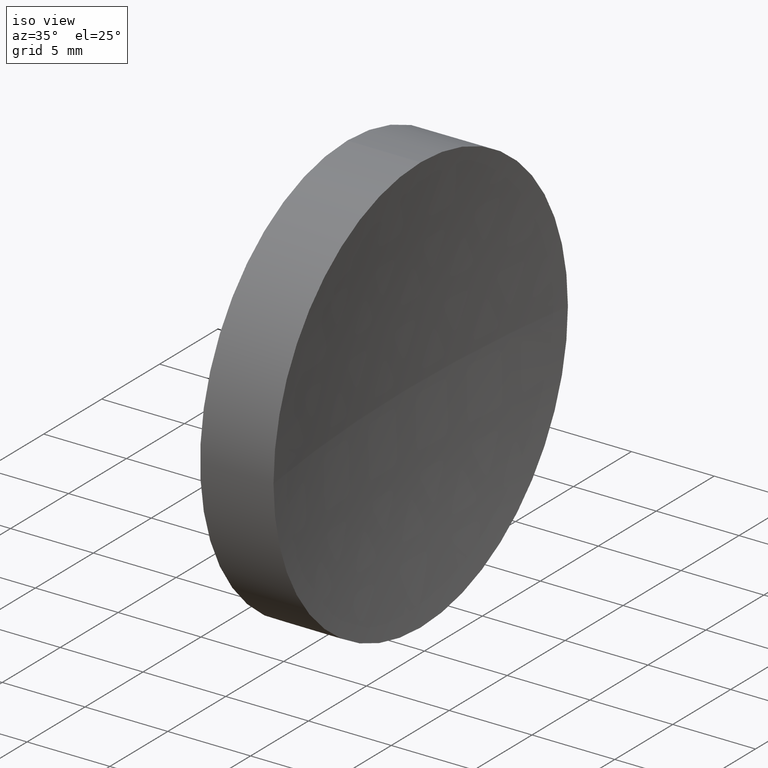
[diagram: clean part render]
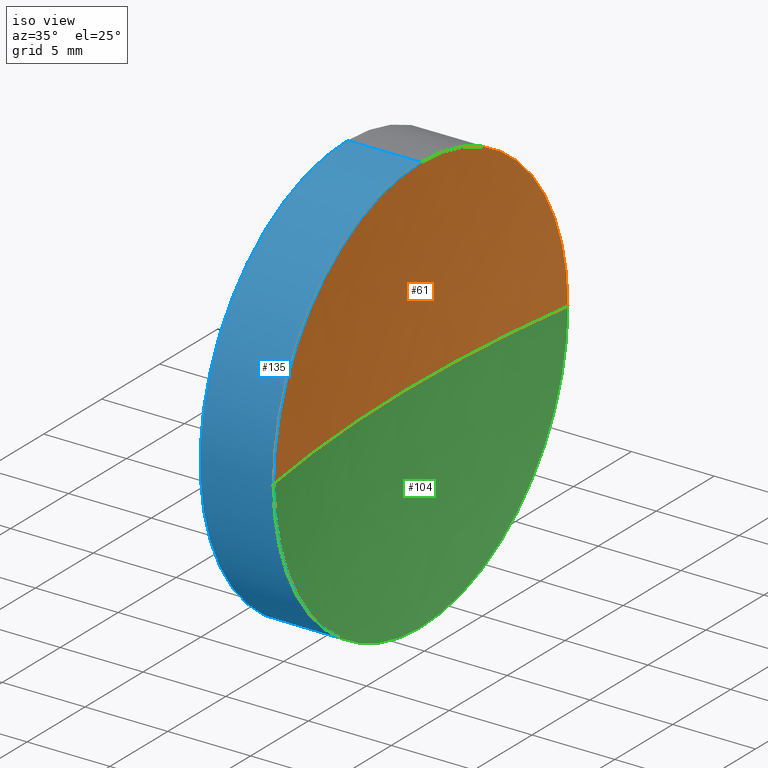
[diagram: same view with three faces highlighted in distinct colors, each labeled with its STEP entity id]
A machine part, iso view with three faces highlighted in distinct colors.
Their STEP definitions:

[orange] entity #61 — the highlighted spherical surface has radius 86.8 mm.
#3 = AXIS2_PLACEMENT_3D ( 'NONE', #100, #25, #39 ) ;
#11 = DIRECTION ( 'NONE',  ( -1.000000000000000000, 0.0000000000000000000, 0.0000000000000000000 ) ) ;
#16 = VERTEX_POINT ( 'NONE', #17 ) ;
#17 = CARTESIAN_POINT ( 'NONE',  ( 123.9409503829447100, 58.49398908659372900, 0.0000000000000000000 ) ) ;
#18 = CIRCLE ( 'NONE', #134, 12.70000000000001700 ) ;
#23 = CIRCLE ( 'NONE', #137, 12.70000000000001700 ) ;
#25 = DIRECTION ( 'NONE',  ( 0.0000000000000000000, -1.224646799147353200E-016, 1.000000000000000000 ) ) ;
#30 = EDGE_CURVE ( 'NONE', #16, #144, #18, .T. ) ;
#38 = ORIENTED_EDGE ( 'NONE', *, *, #117, .F. ) ;
#39 = DIRECTION ( 'NONE',  ( 0.0000000000000000000, -1.000000000000000000, -1.224646799147353500E-016 ) ) ;
#49 = ORIENTED_EDGE ( 'NONE', *, *, #108, .F. ) ;
#50 = CARTESIAN_POINT ( 'NONE',  ( 123.0068341785477300, 71.19398908659373100, 0.0000000000000000000 ) ) ;
#52 = EDGE_LOOP ( 'NONE', ( #49, #38, #151, #173 ) ) ;
#61 = ADVANCED_FACE ( 'NONE', ( #185 ), #163, .F. ) ;
#68 = CARTESIAN_POINT ( 'NONE',  ( 123.9409503829447100, 83.89398908659370600, 1.555301434917135500E-015 ) ) ;
#78 = AXIS2_PLACEMENT_3D ( 'NONE', #92, #159, #160 ) ;
#84 = CARTESIAN_POINT ( 'NONE',  ( 123.9409503829447100, 71.19398908659370300, 0.0000000000000000000 ) ) ;
#92 = CARTESIAN_POINT ( 'NONE',  ( 209.8068341785477200, 71.19398908659373100, 0.0000000000000000000 ) ) ;
#93 = DIRECTION ( 'NONE',  ( -1.000000000000000000, -0.0000000000000000000, -0.0000000000000000000 ) ) ;
#96 = VERTEX_POINT ( 'NONE', #68 ) ;
#100 = CARTESIAN_POINT ( 'NONE',  ( 209.8068341785477200, 71.19398908659373100, 0.0000000000000000000 ) ) ;
#108 = EDGE_CURVE ( 'NONE', #96, #133, #183, .T. ) ;
#112 = DIRECTION ( 'NONE',  ( 0.0000000000000000000, 0.0000000000000000000, 1.000000000000000000 ) ) ;
#114 = CIRCLE ( 'NONE', #150, 86.79999999999999700 ) ;
#117 = EDGE_CURVE ( 'NONE', #144, #96, #23, .T. ) ;
#118 = DIRECTION ( 'NONE',  ( 0.0000000000000000000, 0.0000000000000000000, 1.000000000000000000 ) ) ;
#125 = DIRECTION ( 'NONE',  ( 0.0000000000000000000, 0.0000000000000000000, -1.000000000000000000 ) ) ;
#133 = VERTEX_POINT ( 'NONE', #50 ) ;
#134 = AXIS2_PLACEMENT_3D ( 'NONE', #147, #93, #118 ) ;
#137 = AXIS2_PLACEMENT_3D ( 'NONE', #84, #164, #112 ) ;
#144 = VERTEX_POINT ( 'NONE', #169 ) ;
#147 = CARTESIAN_POINT ( 'NONE',  ( 123.9409503829447100, 71.19398908659370300, 0.0000000000000000000 ) ) ;
#150 = AXIS2_PLACEMENT_3D ( 'NONE', #167, #125, #11 ) ;
#151 = ORIENTED_EDGE ( 'NONE', *, *, #30, .F. ) ;
#159 = DIRECTION ( 'NONE',  ( 0.0000000000000000000, 0.0000000000000000000, 1.000000000000000000 ) ) ;
#160 = DIRECTION ( 'NONE',  ( 0.0000000000000000000, -1.000000000000000000, 0.0000000000000000000 ) ) ;
#163 = SPHERICAL_SURFACE ( 'NONE', #78, 86.79999999999999700 ) ;
#164 = DIRECTION ( 'NONE',  ( -1.000000000000000000, -0.0000000000000000000, -0.0000000000000000000 ) ) ;
#167 = CARTESIAN_POINT ( 'NONE',  ( 209.8068341785477200, 71.19398908659373100, 0.0000000000000000000 ) ) ;
#168 = EDGE_CURVE ( 'NONE', #16, #133, #114, .T. ) ;
#169 = CARTESIAN_POINT ( 'NONE',  ( 123.9409503829447100, 71.19398908659370300, 12.70000000000001500 ) ) ;
#173 = ORIENTED_EDGE ( 'NONE', *, *, #168, .T. ) ;
#183 = CIRCLE ( 'NONE', #3, 86.79999999999999700 ) ;
#185 = FACE_OUTER_BOUND ( 'NONE', #52, .T. ) ;

[blue] entity #135 — the highlighted cylindrical surface (partial cylindrical patch) has radius 12.7 mm, axis along (-1, -0, -0).
#5 = FACE_OUTER_BOUND ( 'NONE', #158, .T. ) ;
#6 = CARTESIAN_POINT ( 'NONE',  ( 111.9552297575605700, 71.19398908659370300, -12.70000000000001000 ) ) ;
#12 = CARTESIAN_POINT ( 'NONE',  ( 111.9552297575605700, 71.19398908659370300, 12.70000000000001000 ) ) ;
#14 = ORIENTED_EDGE ( 'NONE', *, *, #103, .T. ) ;
#15 = DIRECTION ( 'NONE',  ( -1.000000000000000000, -0.0000000000000000000, -0.0000000000000000000 ) ) ;
#16 = VERTEX_POINT ( 'NONE', #17 ) ;
#17 = CARTESIAN_POINT ( 'NONE',  ( 123.9409503829447100, 58.49398908659372900, 0.0000000000000000000 ) ) ;
#18 = CIRCLE ( 'NONE', #134, 12.70000000000001700 ) ;
#19 = CYLINDRICAL_SURFACE ( 'NONE', #116, 12.70000000000001000 ) ;
#22 = AXIS2_PLACEMENT_3D ( 'NONE', #153, #54, #83 ) ;
#27 = CARTESIAN_POINT ( 'NONE',  ( 111.9552297575605700, 71.19398908659370300, 0.0000000000000000000 ) ) ;
#30 = EDGE_CURVE ( 'NONE', #16, #144, #18, .T. ) ;
#31 = VECTOR ( 'NONE', #73, 1000.000000000000000 ) ;
#34 = DIRECTION ( 'NONE',  ( -1.000000000000000000, -0.0000000000000000000, -0.0000000000000000000 ) ) ;
#44 = CIRCLE ( 'NONE', #140, 12.70000000000001700 ) ;
#54 = DIRECTION ( 'NONE',  ( -1.000000000000000000, -0.0000000000000000000, -0.0000000000000000000 ) ) ;
#58 = EDGE_CURVE ( 'NONE', #111, #16, #44, .T. ) ;
#70 = DIRECTION ( 'NONE',  ( 0.0000000000000000000, 0.0000000000000000000, 1.000000000000000000 ) ) ;
#73 = DIRECTION ( 'NONE',  ( -1.000000000000000000, -0.0000000000000000000, -0.0000000000000000000 ) ) ;
#76 = LINE ( 'NONE', #12, #31 ) ;
#77 = CARTESIAN_POINT ( 'NONE',  ( 123.9409503829447100, 71.19398908659370300, 0.0000000000000000000 ) ) ;
#82 = EDGE_CURVE ( 'NONE', #111, #124, #94, .T. ) ;
#83 = DIRECTION ( 'NONE',  ( 0.0000000000000000000, 0.0000000000000000000, 1.000000000000000000 ) ) ;
#88 = VERTEX_POINT ( 'NONE', #141 ) ;
#93 = DIRECTION ( 'NONE',  ( -1.000000000000000000, -0.0000000000000000000, -0.0000000000000000000 ) ) ;
#94 = LINE ( 'NONE', #6, #115 ) ;
#102 = ORIENTED_EDGE ( 'NONE', *, *, #82, .F. ) ;
#103 = EDGE_CURVE ( 'NONE', #144, #88, #76, .T. ) ;
#105 = DIRECTION ( 'NONE',  ( 0.0000000000000000000, 0.0000000000000000000, 1.000000000000000000 ) ) ;
#111 = VERTEX_POINT ( 'NONE', #156 ) ;
#115 = VECTOR ( 'NONE', #34, 1000.000000000000000 ) ;
#116 = AXIS2_PLACEMENT_3D ( 'NONE', #27, #15, #70 ) ;
#118 = DIRECTION ( 'NONE',  ( 0.0000000000000000000, 0.0000000000000000000, 1.000000000000000000 ) ) ;
#124 = VERTEX_POINT ( 'NONE', #127 ) ;
#127 = CARTESIAN_POINT ( 'NONE',  ( 119.5068341785477100, 71.19398908659370300, -12.70000000000000300 ) ) ;
#134 = AXIS2_PLACEMENT_3D ( 'NONE', #147, #93, #118 ) ;
#135 = ADVANCED_FACE ( 'NONE', ( #5 ), #19, .T. ) ;
#139 = CIRCLE ( 'NONE', #22, 12.70000000000000300 ) ;
#140 = AXIS2_PLACEMENT_3D ( 'NONE', #77, #175, #105 ) ;
#141 = CARTESIAN_POINT ( 'NONE',  ( 119.5068341785477100, 71.19398908659370300, 12.70000000000000300 ) ) ;
#144 = VERTEX_POINT ( 'NONE', #169 ) ;
#146 = ORIENTED_EDGE ( 'NONE', *, *, #161, .F. ) ;
#147 = CARTESIAN_POINT ( 'NONE',  ( 123.9409503829447100, 71.19398908659370300, 0.0000000000000000000 ) ) ;
#149 = ORIENTED_EDGE ( 'NONE', *, *, #30, .T. ) ;
#153 = CARTESIAN_POINT ( 'NONE',  ( 119.5068341785477100, 71.19398908659370300, 0.0000000000000000000 ) ) ;
#156 = CARTESIAN_POINT ( 'NONE',  ( 123.9409503829447100, 71.19398908659370300, -12.70000000000001500 ) ) ;
#158 = EDGE_LOOP ( 'NONE', ( #102, #177, #149, #14, #146 ) ) ;
#161 = EDGE_CURVE ( 'NONE', #124, #88, #139, .T. ) ;
#169 = CARTESIAN_POINT ( 'NONE',  ( 123.9409503829447100, 71.19398908659370300, 12.70000000000001500 ) ) ;
#175 = DIRECTION ( 'NONE',  ( -1.000000000000000000, -0.0000000000000000000, -0.0000000000000000000 ) ) ;
#177 = ORIENTED_EDGE ( 'NONE', *, *, #58, .T. ) ;

[green] entity #104 — the highlighted spherical surface has radius 86.8 mm.
#3 = AXIS2_PLACEMENT_3D ( 'NONE', #100, #25, #39 ) ;
#4 = ORIENTED_EDGE ( 'NONE', *, *, #168, .F. ) ;
#11 = DIRECTION ( 'NONE',  ( -1.000000000000000000, 0.0000000000000000000, 0.0000000000000000000 ) ) ;
#16 = VERTEX_POINT ( 'NONE', #17 ) ;
#17 = CARTESIAN_POINT ( 'NONE',  ( 123.9409503829447100, 58.49398908659372900, 0.0000000000000000000 ) ) ;
#25 = DIRECTION ( 'NONE',  ( 0.0000000000000000000, -1.224646799147353200E-016, 1.000000000000000000 ) ) ;
#32 = ORIENTED_EDGE ( 'NONE', *, *, #45, .F. ) ;
#36 = DIRECTION ( 'NONE',  ( 0.0000000000000000000, -1.000000000000000000, 0.0000000000000000000 ) ) ;
#39 = DIRECTION ( 'NONE',  ( 0.0000000000000000000, -1.000000000000000000, -1.224646799147353500E-016 ) ) ;
#44 = CIRCLE ( 'NONE', #140, 12.70000000000001700 ) ;
#45 = EDGE_CURVE ( 'NONE', #96, #111, #136, .T. ) ;
#48 = CARTESIAN_POINT ( 'NONE',  ( 123.9409503829447100, 71.19398908659370300, 0.0000000000000000000 ) ) ;
#50 = CARTESIAN_POINT ( 'NONE',  ( 123.0068341785477300, 71.19398908659373100, 0.0000000000000000000 ) ) ;
#53 = CARTESIAN_POINT ( 'NONE',  ( 209.8068341785477200, 71.19398908659373100, 0.0000000000000000000 ) ) ;
#57 = ORIENTED_EDGE ( 'NONE', *, *, #58, .F. ) ;
#58 = EDGE_CURVE ( 'NONE', #111, #16, #44, .T. ) ;
#63 = DIRECTION ( 'NONE',  ( -1.000000000000000000, -0.0000000000000000000, -0.0000000000000000000 ) ) ;
#64 = SPHERICAL_SURFACE ( 'NONE', #179, 86.79999999999999700 ) ;
#68 = CARTESIAN_POINT ( 'NONE',  ( 123.9409503829447100, 83.89398908659370600, 1.555301434917135500E-015 ) ) ;
#71 = DIRECTION ( 'NONE',  ( 0.0000000000000000000, 0.0000000000000000000, 1.000000000000000000 ) ) ;
#77 = CARTESIAN_POINT ( 'NONE',  ( 123.9409503829447100, 71.19398908659370300, 0.0000000000000000000 ) ) ;
#95 = ORIENTED_EDGE ( 'NONE', *, *, #108, .T. ) ;
#96 = VERTEX_POINT ( 'NONE', #68 ) ;
#100 = CARTESIAN_POINT ( 'NONE',  ( 209.8068341785477200, 71.19398908659373100, 0.0000000000000000000 ) ) ;
#104 = ADVANCED_FACE ( 'NONE', ( #162 ), #64, .F. ) ;
#105 = DIRECTION ( 'NONE',  ( 0.0000000000000000000, 0.0000000000000000000, 1.000000000000000000 ) ) ;
#108 = EDGE_CURVE ( 'NONE', #96, #133, #183, .T. ) ;
#111 = VERTEX_POINT ( 'NONE', #156 ) ;
#114 = CIRCLE ( 'NONE', #150, 86.79999999999999700 ) ;
#121 = EDGE_LOOP ( 'NONE', ( #32, #95, #4, #57 ) ) ;
#125 = DIRECTION ( 'NONE',  ( 0.0000000000000000000, 0.0000000000000000000, -1.000000000000000000 ) ) ;
#133 = VERTEX_POINT ( 'NONE', #50 ) ;
#136 = CIRCLE ( 'NONE', #152, 12.70000000000001700 ) ;
#140 = AXIS2_PLACEMENT_3D ( 'NONE', #77, #175, #105 ) ;
#148 = DIRECTION ( 'NONE',  ( 0.0000000000000000000, 0.0000000000000000000, 1.000000000000000000 ) ) ;
#150 = AXIS2_PLACEMENT_3D ( 'NONE', #167, #125, #11 ) ;
#152 = AXIS2_PLACEMENT_3D ( 'NONE', #48, #63, #148 ) ;
#156 = CARTESIAN_POINT ( 'NONE',  ( 123.9409503829447100, 71.19398908659370300, -12.70000000000001500 ) ) ;
#162 = FACE_OUTER_BOUND ( 'NONE', #121, .T. ) ;
#167 = CARTESIAN_POINT ( 'NONE',  ( 209.8068341785477200, 71.19398908659373100, 0.0000000000000000000 ) ) ;
#168 = EDGE_CURVE ( 'NONE', #16, #133, #114, .T. ) ;
#175 = DIRECTION ( 'NONE',  ( -1.000000000000000000, -0.0000000000000000000, -0.0000000000000000000 ) ) ;
#179 = AXIS2_PLACEMENT_3D ( 'NONE', #53, #71, #36 ) ;
#183 = CIRCLE ( 'NONE', #3, 86.79999999999999700 ) ;